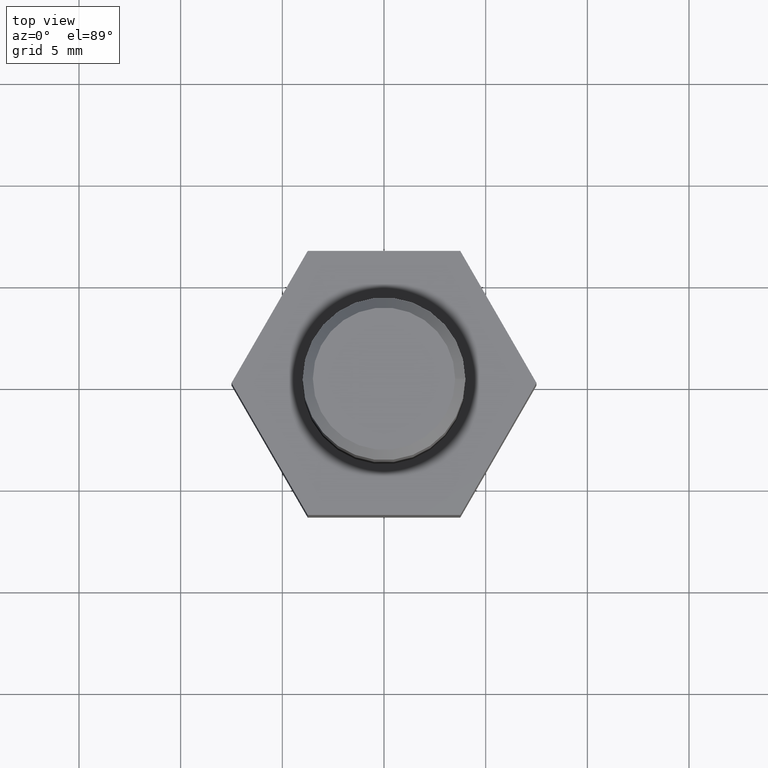
[diagram: clean part render]
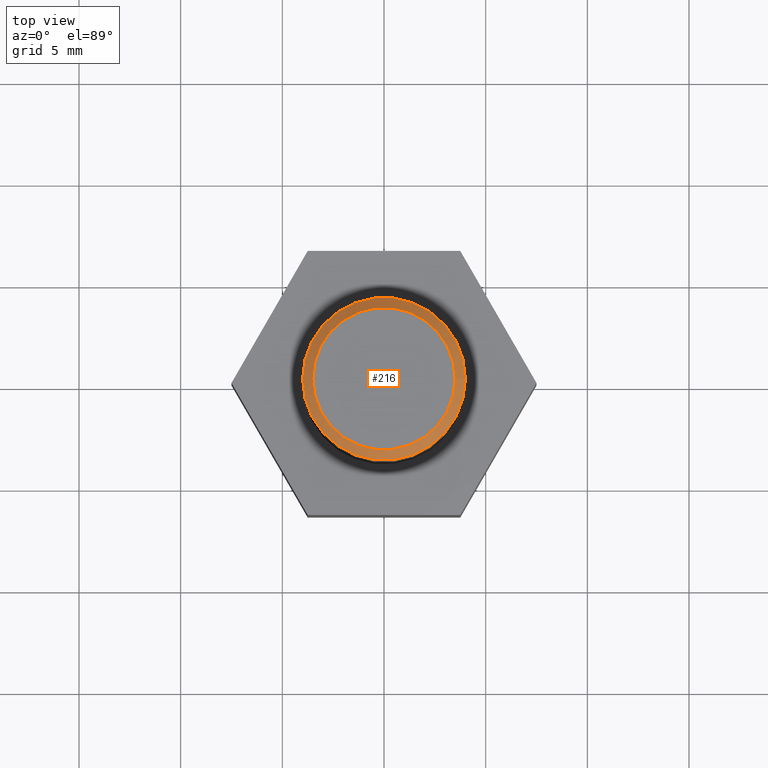
[diagram: same view with one face highlighted and labeled with its STEP entity id]
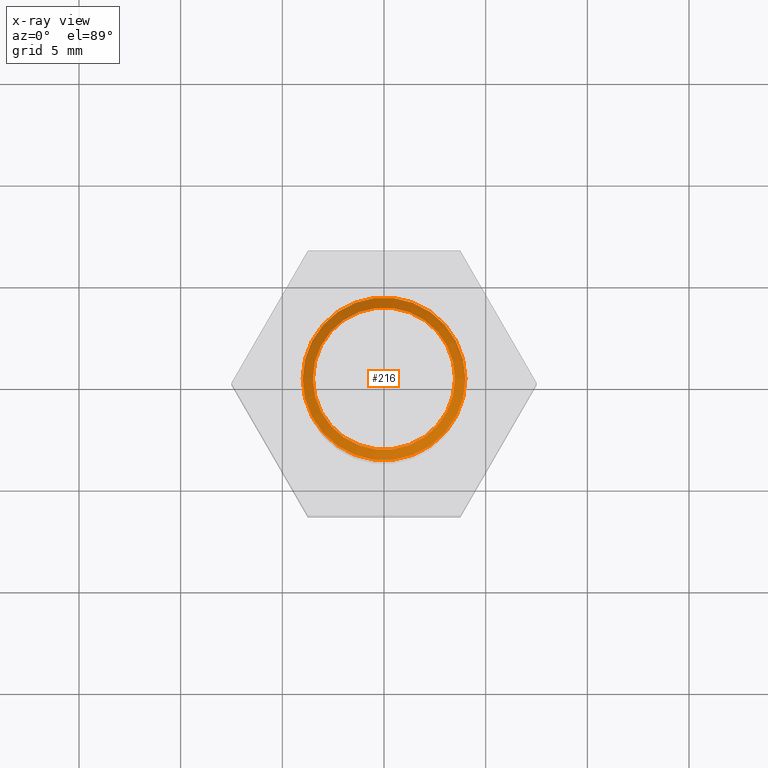
[diagram: x-ray of the same camera — body ghosted, the highlighted face saturated]
A machine part, top view. The second image highlights one B-rep face of the part: STEP entity #216.
The next image is the same camera in x-ray: the body ghosted, the highlighted face saturated — about 0% of this face is hidden behind the body in this view.
In plain terms, the highlighted conical surface has half-angle 45 deg.
Its self-contained STEP definition (entity closure, byte-faithful):
#32=FACE_OUTER_BOUND('',#46,.T.);
#46=EDGE_LOOP('',(#164,#165,#166,#167));
#61=LINE('',#350,#83);
#83=VECTOR('',#290,3.75);
#106=CIRCLE('',#257,3.5);
#107=CIRCLE('',#258,4.);
#112=VERTEX_POINT('',#347);
#113=VERTEX_POINT('',#349);
#132=EDGE_CURVE('',#112,#112,#106,.T.);
#133=EDGE_CURVE('',#112,#113,#61,.T.);
#134=EDGE_CURVE('',#113,#113,#107,.T.);
#164=ORIENTED_EDGE('',*,*,#132,.T.);
#165=ORIENTED_EDGE('',*,*,#133,.T.);
#166=ORIENTED_EDGE('',*,*,#134,.T.);
#167=ORIENTED_EDGE('',*,*,#133,.F.);
#212=CONICAL_SURFACE('',#256,3.75,0.785398163397446);
#216=ADVANCED_FACE('',(#32),#212,.T.);
#256=AXIS2_PLACEMENT_3D('',#346,#286,#287);
#257=AXIS2_PLACEMENT_3D('',#348,#288,#289);
#258=AXIS2_PLACEMENT_3D('',#351,#291,#292);
#286=DIRECTION('center_axis',(0.,0.,-1.));
#287=DIRECTION('ref_axis',(-1.,0.,0.));
#288=DIRECTION('center_axis',(0.,0.,-1.));
#289=DIRECTION('ref_axis',(-1.,0.,0.));
#290=DIRECTION('',(0.707106781186546,8.65956056235491E-17,-0.707106781186549));
#291=DIRECTION('center_axis',(0.,0.,1.));
#292=DIRECTION('ref_axis',(-1.,0.,0.));
#346=CARTESIAN_POINT('Origin',(0.,0.,24.5));
#347=CARTESIAN_POINT('',(3.5,-4.28626379701574E-16,24.75));
#348=CARTESIAN_POINT('Origin',(0.,0.,24.75));
#349=CARTESIAN_POINT('',(4.,4.89858719658941E-16,24.25));
#350=CARTESIAN_POINT('',(3.75,4.59242549680257E-16,24.5));
#351=CARTESIAN_POINT('Origin',(0.,0.,24.25));